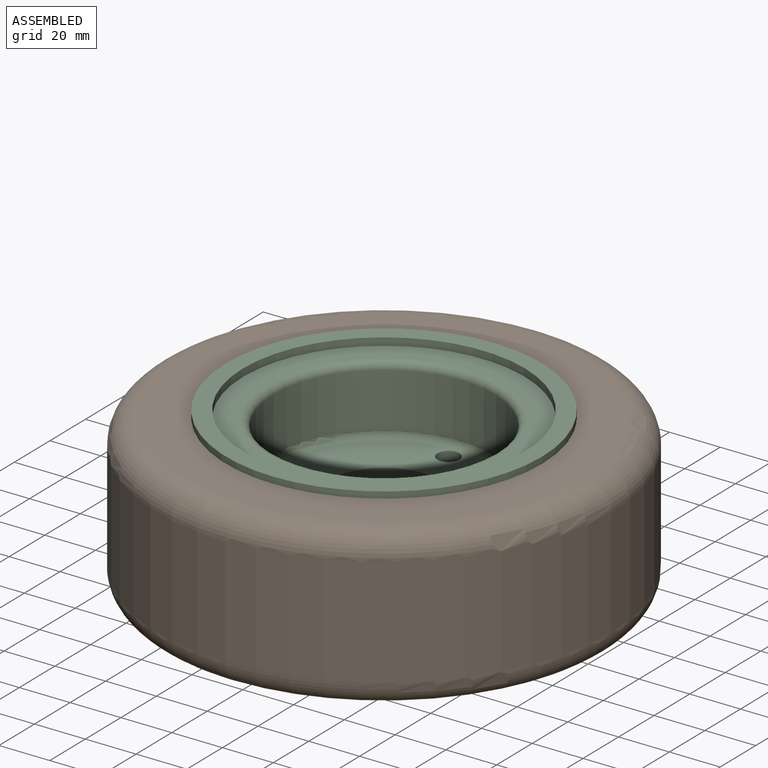
[diagram: assembled view]
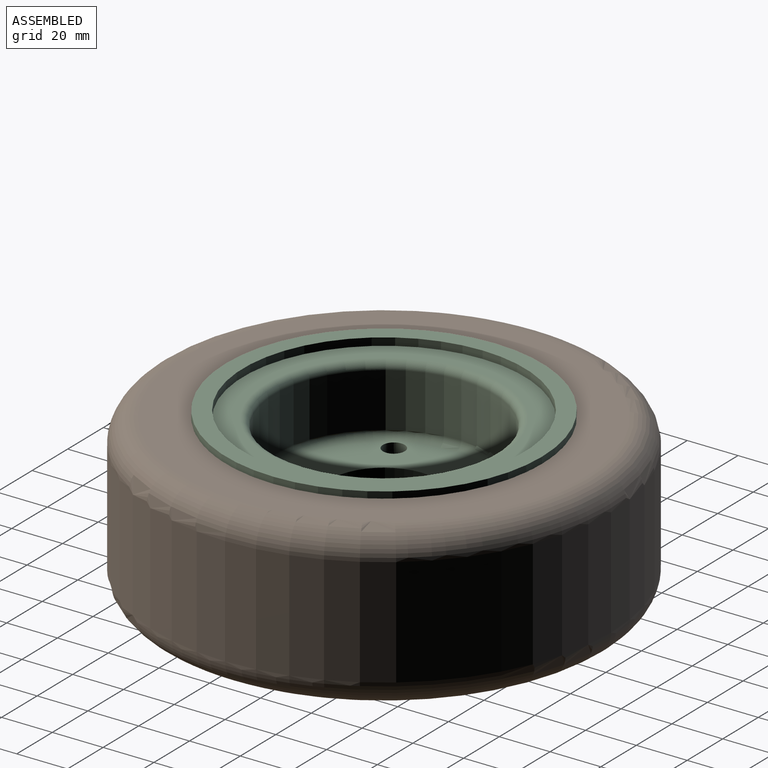
[diagram: assembled view, second angle]
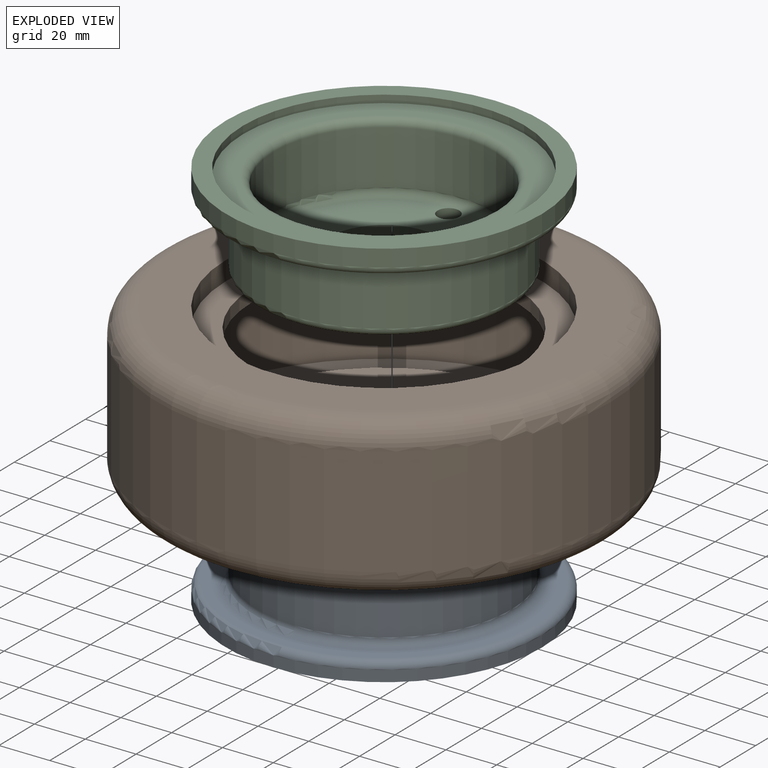
[diagram: exploded view]
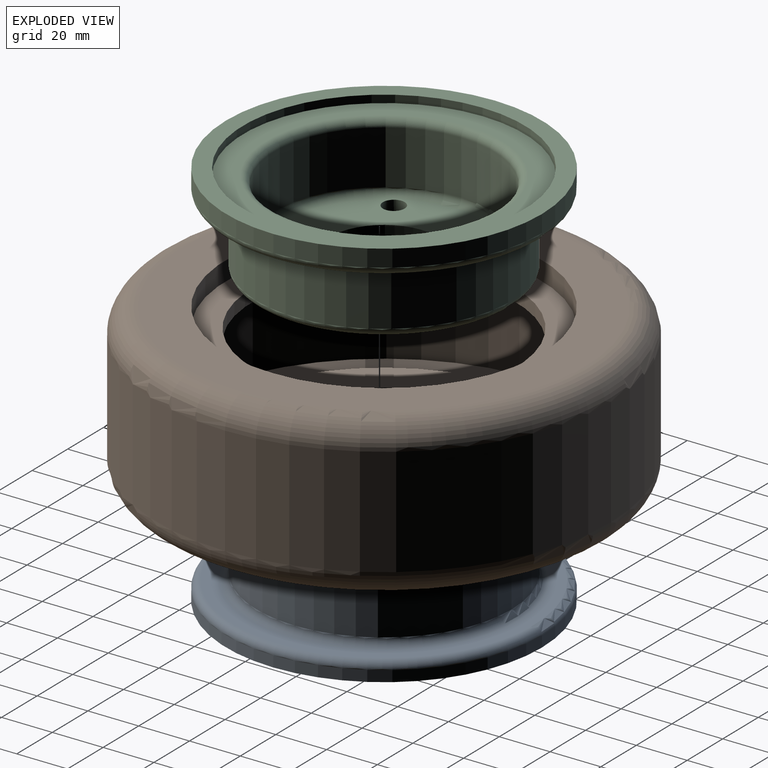
[diagram: exploded view, second angle]
ASSEMBLY  parts=3 mates=2
PART A: 19 faces, bbox 134.7x134.7x31.1 mm
  f0: torus R=44.7mm, axis (0,0,-1), area 1380.1mm2, adj f1,f15
  f1: cylinder r=47.7mm len=95.4mm, axis (0,0,-1), area 5229.9mm2, adj f0,f2
  f2: torus R=50.7mm, axis (0,0,-1), area 1444.6mm2, adj f1,f3
  f3: plane 113.46x113.46mm, normal (0,0,-1), area 2035.1mm2, adj f2,f4
  f4: torus R=56.73mm, axis (0,0,-1), area 1736.3mm2, adj f3,f5
  f5: cylinder r=59.73mm len=119.46mm, axis (0,0,-1), area 675.5mm2, adj f4,f6
  f6: plane 124.46x124.46mm, normal (0,0,-1), area 957.9mm2, adj f5,f7
  f7: cylinder r=62.23mm len=124.46mm, axis (0,0,-1), area 1681.3mm2, adj f6,f8
  f8: torus R=59.23mm, axis (0,0,-1), area 1810.3mm2, adj f7,f9
  f9: plane 118.46x118.46mm, normal (0,0,1), area 2129.9mm2, adj f8,f10
  f10: torus R=53.2mm, axis (0,0,-1), area 1518.6mm2, adj f9,f11
  f11: cylinder r=50.2mm len=100.4mm, axis (0,0,-1), area 5504mm2, adj f10,f12
  f12: torus R=47.2mm, axis (0,0,-1), area 1454.1mm2, adj f11,f13
  f13: plane 94.4x94.4mm, normal (0,0,1), area 5412.7mm2, adj f12,f14,f16,f17,f18
  f14: cylinder r=21.2mm len=42.4mm, axis (0,0,-1), area 333mm2, adj f13,f15
  f15: plane 89.4x89.4mm, normal (0,0,-1), area 4691mm2, adj f0,f14,f16,f17,f18
  f16: cylinder r=4.3mm len=8.6mm, axis (0,0,1), area 67.5mm2, adj f13,f15
  f17: cylinder r=4.3mm len=8.6mm, axis (0,0,1), area 67.5mm2, adj f13,f15
  f18: cylinder r=4.3mm len=8.6mm, axis (0,0,1), area 67.5mm2, adj f13,f15
PART B: 18 faces, bbox 193.5x193.5x62.8 mm
  f0: cylinder r=52.12mm len=104.25mm, axis (0,0,1), area 1637.5mm2, adj f1,f15
  f1: plane 124.46x124.46mm, normal (0,0,1), area 3630.5mm2, adj f0,f2
  f2: cylinder r=62.23mm len=124.46mm, axis (0,0,1), area 2938.3mm2, adj f1,f3
  f3: plane 158.8x158.8mm, normal (0,0,1), area 7640.7mm2, adj f2,f16
  f4: cylinder r=89.4mm len=178.8mm, axis (0,0,1), area 24064.2mm2, adj f16,f17
  f5: plane 158.8x158.8mm, normal (0,0,-1), area 7640.7mm2, adj f6,f17
  f6: cylinder r=62.23mm len=124.46mm, axis (0,0,1), area 1865mm2, adj f5,f7
  f7: plane 124.46x124.46mm, normal (0,0,-1), area 3630.5mm2, adj f6,f8
  f8: cylinder r=52.12mm len=104.25mm, axis (0,0,1), area 1637.5mm2, adj f7,f9
  f9: plane 134.46x134.46mm, normal (0,0,1), area 5664.1mm2, adj f8,f10
  f10: cylinder r=67.23mm len=134.46mm, axis (0,0,1), area 2014.8mm2, adj f9,f11
  f11: plane 168.8x168.8mm, normal (0,0,1), area 8180.2mm2, adj f10,f12
  f12: cylinder r=84.4mm len=168.8mm, axis (0,0,1), area 28021.5mm2, adj f11,f13
  f13: plane 168.8x168.8mm, normal (0,0,-1), area 8180.2mm2, adj f12,f14
  f14: cylinder r=67.23mm len=134.46mm, axis (0,0,1), area 3174.4mm2, adj f13,f15
  f15: plane 134.46x134.46mm, normal (0,0,-1), area 5664.1mm2, adj f0,f14
  f16: torus R=79.4mm, axis (0,0,1), area 8465mm2, adj f3,f4
  f17: torus R=79.4mm, axis (0,0,-1), area 8465mm2, adj f4,f5
PART C: 18 faces, bbox 134.7x134.7x37.2 mm
  f0: plane 80.9x80.89mm, normal (0,0,1), area 3554.5mm2, adj f1,f3,f15,f16,f17
  f1: torus R=40.45mm, axis (0,0,-1), area 1253.8mm2, adj f0,f4,f15,f16,f17
  f2: plane 94.4x94.4mm, normal (0,0,-1), area 5412.7mm2, adj f3,f14,f15,f16,f17
  f3: cylinder r=21.2mm len=42.4mm, axis (0,0,-1), area 899.1mm2, adj f0,f2
  f4: cylinder r=43.45mm len=86.9mm, axis (0,0,-1), area 5842.3mm2, adj f1,f5
  f5: torus R=46.45mm, axis (0,0,-1), area 1318.8mm2, adj f4,f6
  f6: plane 110.96x110.96mm, normal (0,0,1), area 2891.6mm2, adj f5,f7
  f7: cylinder r=55.48mm len=110.96mm, axis (0,0,-1), area 1045.8mm2, adj f6,f8
  f8: plane 124.46x124.46mm, normal (0,0,1), area 2496.1mm2, adj f7,f9
  f9: cylinder r=62.23mm len=124.46mm, axis (0,0,-1), area 2639.3mm2, adj f8,f10
  f10: torus R=59.23mm, axis (0,0,-1), area 1810.3mm2, adj f9,f11
  f11: plane 118.46x118.46mm, normal (0,0,-1), area 2129.9mm2, adj f10,f12
  f12: torus R=53.2mm, axis (0,0,-1), area 1518.6mm2, adj f11,f13
  f13: cylinder r=50.2mm len=100.4mm, axis (0,0,-1), area 6749.9mm2, adj f12,f14
  f14: torus R=47.2mm, axis (0,0,-1), area 1454.1mm2, adj f2,f13
  f15: cylinder r=4.3mm len=8.6mm, axis (0,0,-1), area 182.4mm2, adj f0,f1,f2
  f16: cylinder r=4.3mm len=8.6mm, axis (0,0,-1), area 182.4mm2, adj f0,f1,f2
  f17: cylinder r=4.3mm len=8.6mm, axis (0,0,-1), area 182.4mm2, adj f0,f1,f2
PLACE A t=(-16.79,-5.14,10.03)mm fixed
PLACE B t=(0,-5.14,0)mm
PLACE C t=(-16.79,-5.14,77.93)mm
MATE fastened A.f0 <-> B.f0  axis (0,0,1) through (-16.79,-5.14,17.33)mm
MATE fastened C.f1 <-> A.f0  axis (0,0,-1) through (-16.79,-5.14,40.78)mm
